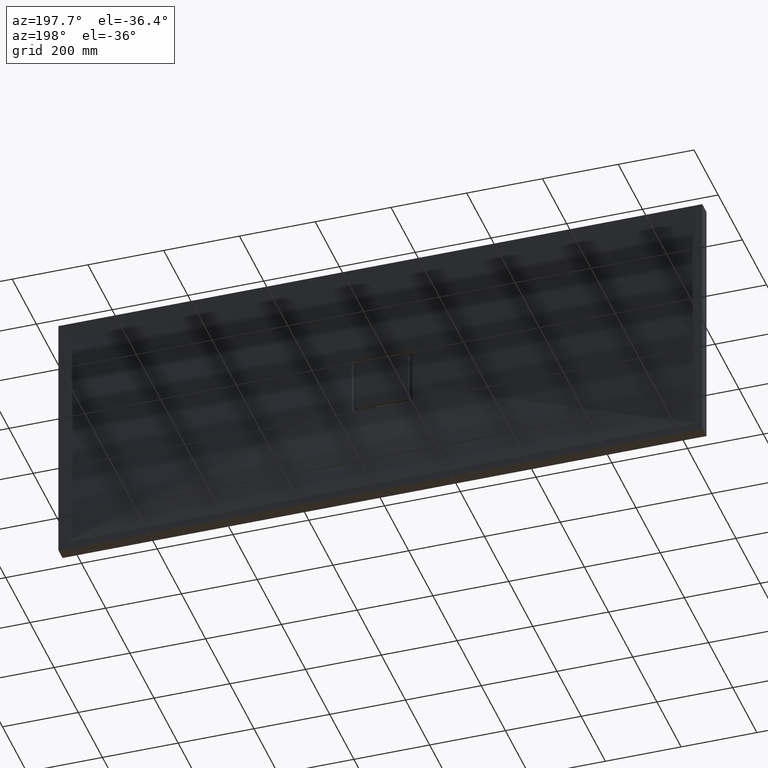
[diagram: clean part render]
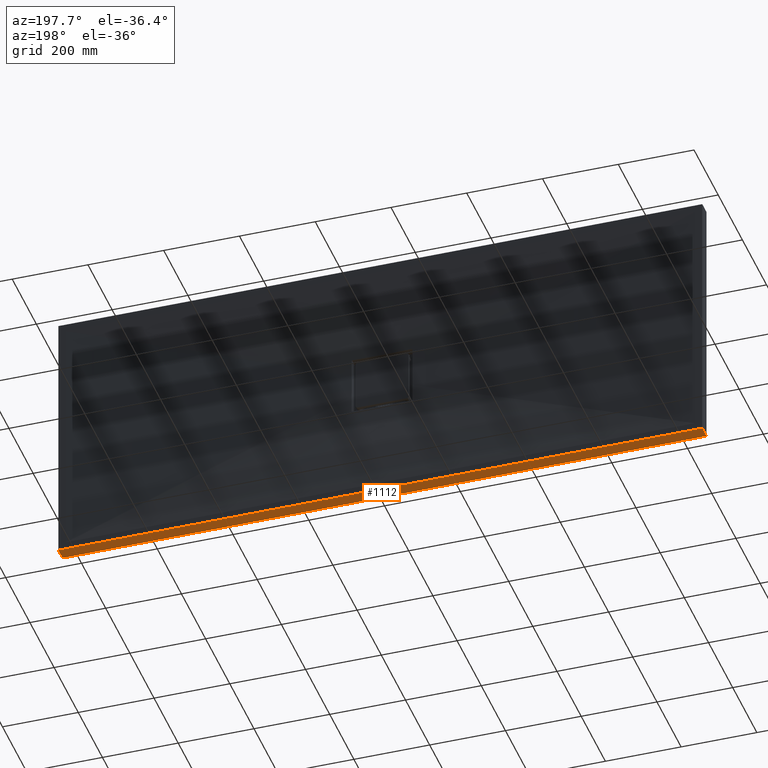
[diagram: same view with one face highlighted and labeled with its STEP entity id]
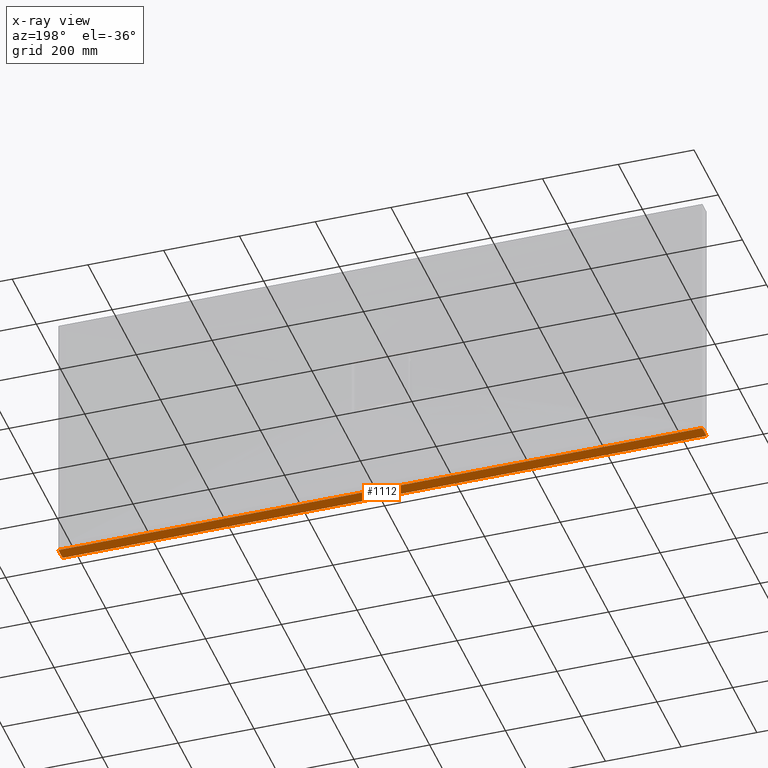
[diagram: x-ray of the same camera — body ghosted, the highlighted face saturated]
A machine part, auxiliary view. The second image highlights one B-rep face of the part: STEP entity #1112.
The next image is the same camera in x-ray: the body ghosted, the highlighted face saturated — about 0% of this face is hidden behind the body in this view.
In plain terms, the highlighted planar face has unit normal (0, 0, 1).
Its self-contained STEP definition (entity closure, byte-faithful):
#28 = VERTEX_POINT ( 'NONE', #2609 ) ;
#58 = CARTESIAN_POINT ( 'NONE',  ( 849.9999999999997700, 0.0000000000000000000, -350.0000000000000600 ) ) ;
#64 = LINE ( 'NONE', #2529, #3217 ) ;
#197 = CARTESIAN_POINT ( 'NONE',  ( -850.0000000000002300, 35.00000000000000000, -350.0000000000000600 ) ) ;
#246 = DIRECTION ( 'NONE',  ( -1.000000000000000000, -0.0000000000000000000, -0.0000000000000000000 ) ) ;
#312 = VERTEX_POINT ( 'NONE', #2172 ) ;
#417 = VECTOR ( 'NONE', #1958, 1000.000000000000000 ) ;
#420 = CARTESIAN_POINT ( 'NONE',  ( -850.0000000000002300, 0.0000000000000000000, -350.0000000000000600 ) ) ;
#422 = LINE ( 'NONE', #3243, #417 ) ;
#427 = DIRECTION ( 'NONE',  ( -1.000000000000000000, -0.0000000000000000000, -0.0000000000000000000 ) ) ;
#463 = CARTESIAN_POINT ( 'NONE',  ( -850.0000000000002300, 35.00000000000000000, -350.0000000000000600 ) ) ;
#979 = EDGE_LOOP ( 'NONE', ( #2825, #1997, #2735, #2789 ) ) ;
#1112 = ADVANCED_FACE ( 'NONE', ( #1636 ), #3063, .F. ) ;
#1221 = DIRECTION ( 'NONE',  ( 0.0000000000000000000, 0.0000000000000000000, 1.000000000000000000 ) ) ;
#1225 = LINE ( 'NONE', #420, #1445 ) ;
#1236 = VERTEX_POINT ( 'NONE', #2731 ) ;
#1445 = VECTOR ( 'NONE', #427, 1000.000000000000000 ) ;
#1556 = EDGE_CURVE ( 'NONE', #28, #312, #422, .T. ) ;
#1636 = FACE_OUTER_BOUND ( 'NONE', #979, .T. ) ;
#1930 = VERTEX_POINT ( 'NONE', #58 ) ;
#1958 = DIRECTION ( 'NONE',  ( -0.0000000000000000000, -1.000000000000000000, -0.0000000000000000000 ) ) ;
#1997 = ORIENTED_EDGE ( 'NONE', *, *, #1556, .F. ) ;
#2062 = EDGE_CURVE ( 'NONE', #1236, #28, #2334, .T. ) ;
#2172 = CARTESIAN_POINT ( 'NONE',  ( -850.0000000000002300, 0.0000000000000000000, -350.0000000000000600 ) ) ;
#2183 = VECTOR ( 'NONE', #246, 1000.000000000000000 ) ;
#2334 = LINE ( 'NONE', #463, #2183 ) ;
#2359 = AXIS2_PLACEMENT_3D ( 'NONE', #197, #1221, #3139 ) ;
#2529 = CARTESIAN_POINT ( 'NONE',  ( 849.9999999999997700, 35.00000000000000000, -350.0000000000000600 ) ) ;
#2553 = EDGE_CURVE ( 'NONE', #1236, #1930, #64, .T. ) ;
#2608 = DIRECTION ( 'NONE',  ( -0.0000000000000000000, -1.000000000000000000, -0.0000000000000000000 ) ) ;
#2609 = CARTESIAN_POINT ( 'NONE',  ( -850.0000000000002300, 35.00000000000000000, -350.0000000000000600 ) ) ;
#2731 = CARTESIAN_POINT ( 'NONE',  ( 849.9999999999997700, 35.00000000000000000, -350.0000000000000600 ) ) ;
#2735 = ORIENTED_EDGE ( 'NONE', *, *, #2062, .F. ) ;
#2789 = ORIENTED_EDGE ( 'NONE', *, *, #2553, .T. ) ;
#2825 = ORIENTED_EDGE ( 'NONE', *, *, #3264, .T. ) ;
#3063 = PLANE ( 'NONE',  #2359 ) ;
#3139 = DIRECTION ( 'NONE',  ( 1.000000000000000000, 0.0000000000000000000, -0.0000000000000000000 ) ) ;
#3217 = VECTOR ( 'NONE', #2608, 1000.000000000000000 ) ;
#3243 = CARTESIAN_POINT ( 'NONE',  ( -850.0000000000002300, 35.00000000000000000, -350.0000000000000600 ) ) ;
#3264 = EDGE_CURVE ( 'NONE', #1930, #312, #1225, .T. ) ;